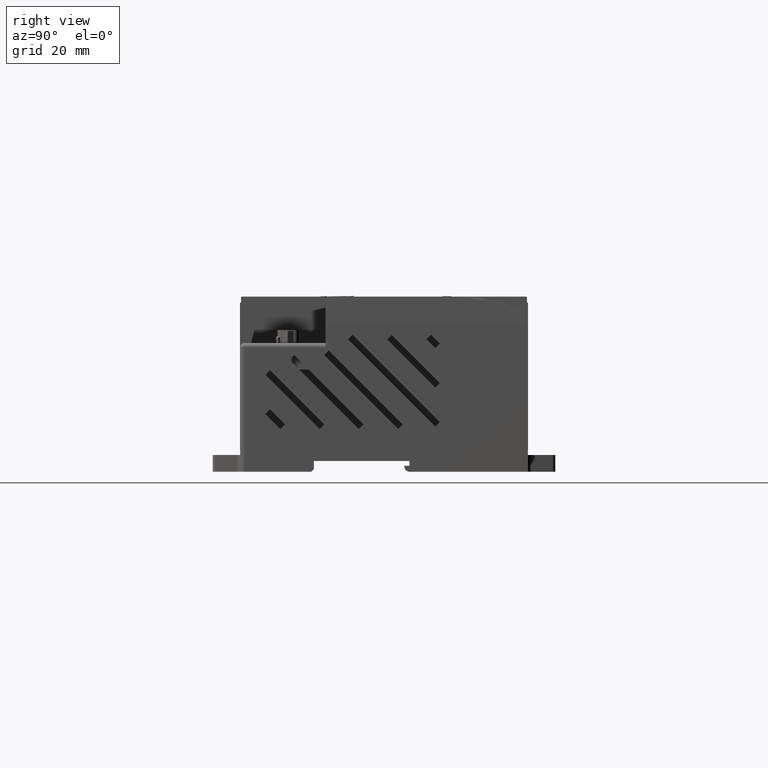
[diagram: clean part render]
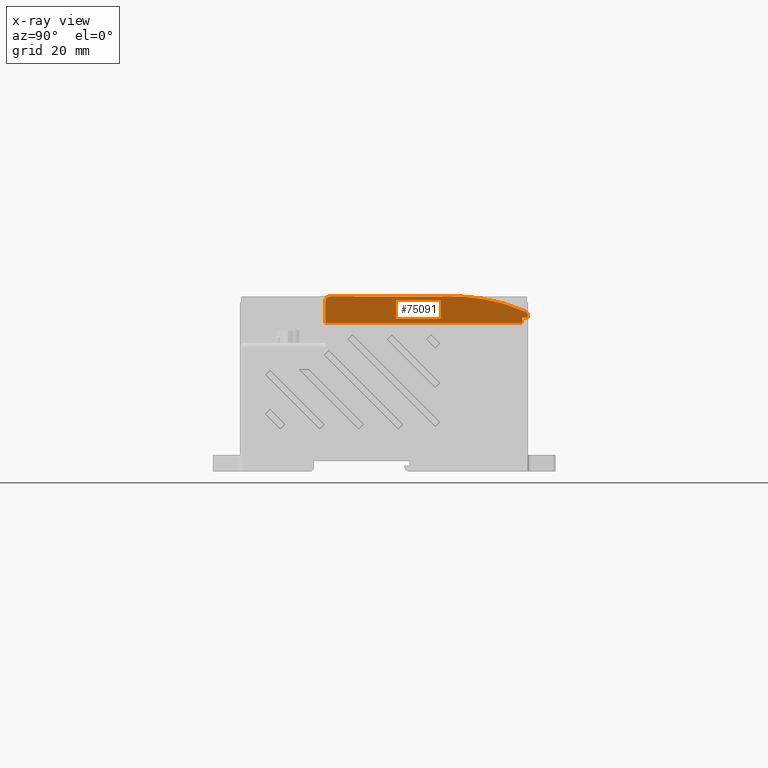
[diagram: x-ray — body ghosted, one internal face saturated and labeled with its STEP entity id]
A machine part, right view, then the same camera in x-ray: the body is ghosted and one INTERNAL B-rep face — a face not visible from any outside direction — is saturated and labeled: STEP entity #75091.
In plain terms, the highlighted planar face has unit normal (-1, 0, -0).
Its self-contained STEP definition (entity closure, byte-faithful):
#3319 = VERTEX_POINT ( 'NONE', #16716 ) ;
#3332 = EDGE_CURVE ( 'NONE', #3319, #3375, #16687, .T. ) ;
#3375 = VERTEX_POINT ( 'NONE', #16831 ) ;
#4147 = EDGE_CURVE ( 'NONE', #4149, #75657, #19197, .T. ) ;
#4149 = VERTEX_POINT ( 'NONE', #19192 ) ;
#6630 = EDGE_CURVE ( 'NONE', #3375, #4149, #23132, .T. ) ;
#13619 = DIRECTION ( 'NONE',  ( -4.370956789862844000E-015, 0.0000000000000000000, 1.000000000000000000 ) ) ;
#13621 = DIRECTION ( 'NONE',  ( -1.000000000000000000, 0.0000000000000000000, -3.491483361109382100E-015 ) ) ;
#13622 = CARTESIAN_POINT ( 'NONE',  ( 2.021649015748027800, 1.309567633333244400, 5.759950000000001700 ) ) ;
#13624 = AXIS2_PLACEMENT_3D ( 'NONE', #13622, #13621, #13619 ) ;
#13625 = CIRCLE ( 'NONE', #13624, 0.06249999999999967400 ) ;
#13648 = CARTESIAN_POINT ( 'NONE',  ( 2.021649015748028200, 3.202845798833339000, 5.822450000000002600 ) ) ;
#13649 = CARTESIAN_POINT ( 'NONE',  ( 2.021649015748028700, 4.165323162130881100, 5.602163950472054800 ) ) ;
#13656 = DIRECTION ( 'NONE',  ( -3.522823058906745000E-015, 0.0000000000000000000, 1.000000000000000000 ) ) ;
#13658 = DIRECTION ( 'NONE',  ( -1.000000000000000000, 0.0000000000000000000, -3.491483361109382100E-015 ) ) ;
#13659 = CARTESIAN_POINT ( 'NONE',  ( 2.021649015748037100, 3.123871135442914500, 3.264613785527198200 ) ) ;
#13660 = AXIS2_PLACEMENT_3D ( 'NONE', #13659, #13658, #13656 ) ;
#13662 = CIRCLE ( 'NONE', #13660, 2.559055118110237400 ) ;
#13781 = CARTESIAN_POINT ( 'NONE',  ( 2.021649015748028200, 1.309567633333244400, 5.822450000000002600 ) ) ;
#13805 = DIRECTION ( 'NONE',  ( 9.753868800882017800E-031, 1.000000000000000000, -2.793617437656305900E-016 ) ) ;
#13807 = VECTOR ( 'NONE', #13805, 39.37007874015748100 ) ;
#13808 = CARTESIAN_POINT ( 'NONE',  ( 2.021649015748028200, 1.247067633333244000, 5.822450000000002600 ) ) ;
#13810 = LINE ( 'NONE', #13808, #13807 ) ;
#14235 = DIRECTION ( 'NONE',  ( -4.370956789862844000E-015, 0.0000000000000000000, 1.000000000000000000 ) ) ;
#14236 = DIRECTION ( 'NONE',  ( -1.000000000000000000, 0.0000000000000000000, -3.491483361109382100E-015 ) ) ;
#14238 = CARTESIAN_POINT ( 'NONE',  ( 2.021649015748028700, 4.139887699171386400, 5.545073782982055600 ) ) ;
#14240 = AXIS2_PLACEMENT_3D ( 'NONE', #14238, #14236, #14235 ) ;
#14242 = CIRCLE ( 'NONE', #14240, 0.06249999999999967400 ) ;
#16684 = DIRECTION ( 'NONE',  ( 3.491483361109382100E-015, 0.0000000000000000000, -1.000000000000000000 ) ) ;
#16685 = VECTOR ( 'NONE', #16684, 39.37007874015748100 ) ;
#16686 = CARTESIAN_POINT ( 'NONE',  ( 2.021649015748028700, 4.119067633333244800, 5.586229527559058100 ) ) ;
#16687 = LINE ( 'NONE', #16686, #16685 ) ;
#16716 = CARTESIAN_POINT ( 'NONE',  ( 2.021649015748029100, 4.119067633333244800, 5.512459526992665300 ) ) ;
#16831 = CARTESIAN_POINT ( 'NONE',  ( 2.021649015748029100, 4.119067633333244800, 5.430450000000002200 ) ) ;
#19192 = CARTESIAN_POINT ( 'NONE',  ( 2.021649015748029100, 1.335067633333244300, 5.430450000000003100 ) ) ;
#19194 = DIRECTION ( 'NONE',  ( -6.642201821001964300E-031, -1.000000000000000000, 1.902401109794054900E-016 ) ) ;
#19195 = VECTOR ( 'NONE', #19194, 39.37007874015748100 ) ;
#19196 = CARTESIAN_POINT ( 'NONE',  ( 2.021649015748029100, 1.247067633333244000, 5.430450000000003100 ) ) ;
#19197 = LINE ( 'NONE', #19196, #19195 ) ;
#23132 = LINE ( 'NONE', #23186, #23185 ) ;
#23184 = DIRECTION ( 'NONE',  ( -6.642201821001964300E-031, -1.000000000000000000, 1.902401109794054900E-016 ) ) ;
#23185 = VECTOR ( 'NONE', #23184, 39.37007874015748100 ) ;
#23186 = CARTESIAN_POINT ( 'NONE',  ( 2.021649015748029100, 1.247067633333244000, 5.430450000000003100 ) ) ;
#38337 = DIRECTION ( 'NONE',  ( -1.772530041817149300E-016, 0.9987105118390379200, 0.05076724871614300000 ) ) ;
#38339 = CARTESIAN_POINT ( 'NONE',  ( 2.021649015748029100, 3.954229419357410300, 5.504080339522789500 ) ) ;
#38340 = LINE ( 'NONE', #38339, #38440 ) ;
#38437 = CARTESIAN_POINT ( 'NONE',  ( 2.021649015748029100, 4.203907047317169800, 5.516772151701824000 ) ) ;
#38440 = VECTOR ( 'NONE', #38337, 39.37007874015748100 ) ;
#38475 = CARTESIAN_POINT ( 'NONE',  ( 2.021649015748028700, 4.202307106161327100, 5.548246736026814400 ) ) ;
#38476 = DIRECTION ( 'NONE',  ( 3.486981134651035800E-015, 0.05076724871614239600, -0.9987105118390379200 ) ) ;
#38478 = VECTOR ( 'NONE', #38476, 39.37007874015748100 ) ;
#38479 = CARTESIAN_POINT ( 'NONE',  ( 2.021649015748029100, 4.203907047317169800, 5.516772151701824000 ) ) ;
#38480 = LINE ( 'NONE', #38479, #38478 ) ;
#38729 = DIRECTION ( 'NONE',  ( -3.491483361109382100E-015, 0.0000000000000000000, 1.000000000000000000 ) ) ;
#38731 = DIRECTION ( 'NONE',  ( -1.000000000000000000, 0.0000000000000000000, -3.491483361109382100E-015 ) ) ;
#38732 = CARTESIAN_POINT ( 'NONE',  ( 2.021649015748037100, 3.123871135442914500, 3.264613785527198200 ) ) ;
#38742 = AXIS2_PLACEMENT_3D ( 'NONE', #38732, #38731, #38729 ) ;
#38744 = PLANE ( 'NONE',  #38742 ) ;
#38754 = FACE_OUTER_BOUND ( 'NONE', #74974, .T. ) ;
#41513 = CARTESIAN_POINT ( 'NONE',  ( 2.021649015748029100, 1.247067633333244000, 5.430450000000003100 ) ) ;
#41514 = DIRECTION ( 'NONE',  ( -3.491483361109382100E-015, 0.0000000000000000000, 1.000000000000000000 ) ) ;
#41516 = VECTOR ( 'NONE', #41514, 39.37007874015748100 ) ;
#41517 = CARTESIAN_POINT ( 'NONE',  ( 2.021649015748029100, 1.247067633333244000, 5.430450000000003100 ) ) ;
#41518 = LINE ( 'NONE', #41517, #41516 ) ;
#41521 = CARTESIAN_POINT ( 'NONE',  ( 2.021649015748028200, 1.247067633333244000, 5.759950000000001700 ) ) ;
#69116 = EDGE_CURVE ( 'NONE', #75654, #69165, #13625, .T. ) ;
#69130 = EDGE_CURVE ( 'NONE', #69143, #69141, #13662, .T. ) ;
#69141 = VERTEX_POINT ( 'NONE', #13649 ) ;
#69143 = VERTEX_POINT ( 'NONE', #13648 ) ;
#69151 = EDGE_CURVE ( 'NONE', #69165, #69143, #13810, .T. ) ;
#69165 = VERTEX_POINT ( 'NONE', #13781 ) ;
#69248 = EDGE_CURVE ( 'NONE', #69141, #74997, #14242, .T. ) ;
#74974 = EDGE_LOOP ( 'NONE', ( #74975, #74976, #74977, #74978, #74980, #75066, #75070, #75071, #75076, #75077 ) ) ;
#74975 = ORIENTED_EDGE ( 'NONE', *, *, #69130, .T. ) ;
#74976 = ORIENTED_EDGE ( 'NONE', *, *, #69248, .T. ) ;
#74977 = ORIENTED_EDGE ( 'NONE', *, *, #74994, .T. ) ;
#74978 = ORIENTED_EDGE ( 'NONE', *, *, #74979, .F. ) ;
#74979 = EDGE_CURVE ( 'NONE', #3319, #74982, #38340, .T. ) ;
#74980 = ORIENTED_EDGE ( 'NONE', *, *, #3332, .T. ) ;
#74982 = VERTEX_POINT ( 'NONE', #38437 ) ;
#74994 = EDGE_CURVE ( 'NONE', #74997, #74982, #38480, .T. ) ;
#74997 = VERTEX_POINT ( 'NONE', #38475 ) ;
#75066 = ORIENTED_EDGE ( 'NONE', *, *, #6630, .T. ) ;
#75070 = ORIENTED_EDGE ( 'NONE', *, *, #4147, .T. ) ;
#75071 = ORIENTED_EDGE ( 'NONE', *, *, #75656, .T. ) ;
#75076 = ORIENTED_EDGE ( 'NONE', *, *, #69116, .T. ) ;
#75077 = ORIENTED_EDGE ( 'NONE', *, *, #69151, .T. ) ;
#75091 = ADVANCED_FACE ( 'NONE', ( #38754 ), #38744, .T. ) ;
#75654 = VERTEX_POINT ( 'NONE', #41521 ) ;
#75656 = EDGE_CURVE ( 'NONE', #75657, #75654, #41518, .T. ) ;
#75657 = VERTEX_POINT ( 'NONE', #41513 ) ;